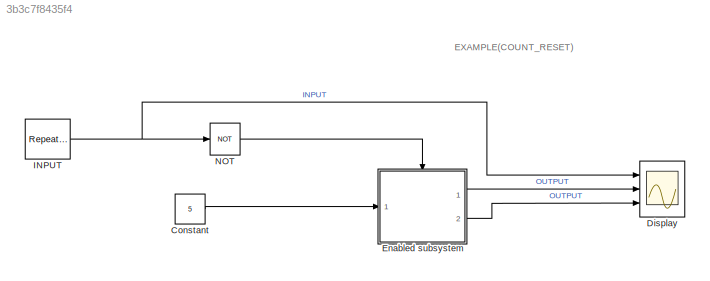
MODEL slx_3b3c7f8435f4
KIND model
CONFIG AbsTol = auto
CONFIG EnableMultiTasking = off
CONFIG FixedStep = auto
CONFIG MaxStep = auto
CONFIG MinStep = auto
CONFIG RelTol = 1e-3
CONFIG SampleTimeConstraint = Unconstrained
CONFIG SolverName = VariableStepAuto
CONFIG StartTime = 0.0
CONFIG StopTime = 20.0
BLOCK [Constant] Constant
  Value = 5
BLOCK [Scope] Display
  Floating = off
  NumInputPorts = 3
  Ports = [3]
  ScopeSpecificationString = Simulink.scopes.TimeScopeBlockCfg('CurrentConfiguration', extmgr.ConfigurationSet(extmgr.Configuration('Core','General UI',true),extmgr.Configuration('Core','Source UI',true),extmgr.Configuration('Sources','WiredSimulink',true),extmgr.Configuration('Visuals','Time Domain',true,'SerializedDisplays',{struct('MinYLimReal','-0.125','MaxYLimReal','1.125','YLabelReal','','MinYLimMag','0.00000','MaxYLimM...<+2611ch>
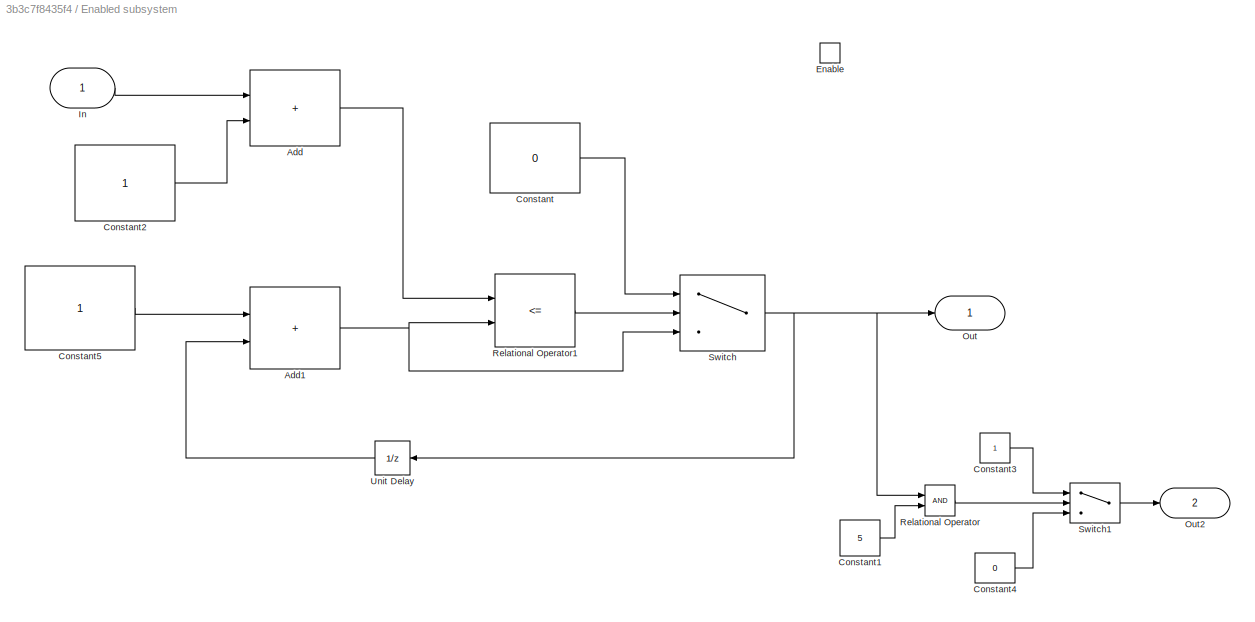
BLOCK [SubSystem] Enabled subsystem
  Ports = [1, 2, 1]
  RequestExecContextInheritance = off
BLOCK [Sum] Enabled subsystem/Add
  IconShape = rectangular
  Ports = [2, 1]
BLOCK [Sum] Enabled subsystem/Add1
  IconShape = rectangular
  Ports = [2, 1]
BLOCK [Constant] Enabled subsystem/Constant
  Value = 0
BLOCK [Constant] Enabled subsystem/Constant1
  Value = 5
BLOCK [Constant] Enabled subsystem/Constant2
BLOCK [Constant] Enabled subsystem/Constant3
BLOCK [Constant] Enabled subsystem/Constant4
  Value = 0
BLOCK [Constant] Enabled subsystem/Constant5
BLOCK [EnablePort] Enabled subsystem/Enable
  Ports = []
BLOCK [Inport] Enabled subsystem/In
BLOCK [Outport] Enabled subsystem/Out
BLOCK [Outport] Enabled subsystem/Out2
  Port = 2
BLOCK [RelationalOperator] Enabled subsystem/Relational Operator
  InputSameDT = off
  OutDataTypeStr = boolean
  Ports = [2, 1]
  RndMeth = Simplest
BLOCK [RelationalOperator] Enabled subsystem/Relational Operator1
  InputSameDT = off
  Operator = <=
  OutDataTypeStr = boolean
  Ports = [2, 1]
  RndMeth = Simplest
BLOCK [Switch] Enabled subsystem/Switch
  Criteria = u2 > Threshold
  InputSameDT = off
  SaturateOnIntegerOverflow = off
BLOCK [Switch] Enabled subsystem/Switch1
  Criteria = u2 > Threshold
  InputSameDT = off
  SaturateOnIntegerOverflow = off
BLOCK [UnitDelay] Enabled subsystem/Unit Delay
  HasFrameUpgradeWarning = on
  NameLocation = top
  SampleTime = -1
BLOCK [Reference] INPUT  REF=simulink/Sources/Repeating
Sequence
Stair
  Ports = [0, 1]
  SourceBlock = simulink/Sources/Repeating\nSequence\nStair
  SourceProductBaseCode = SL
  SourceType = Repeating Sequence Stair
BLOCK [Logic] NOT
  AllPortsSameDT = off
  IconShape = distinctive
  Operator = NOT
  OutDataTypeStr = boolean
  Ports = [1, 1]
ANNOTATION (root): EXAMPLE(COUNT_RESET)
LINE Constant:1 -> Enabled subsystem:1
NET Enabled subsystem/Add1:1 -> Enabled subsystem/Relational Operator1:2, Enabled subsystem/Switch:3
LINE Enabled subsystem/Add:1 -> Enabled subsystem/Relational Operator1:1
LINE Enabled subsystem/Constant1:1 -> Enabled subsystem/Relational Operator:2
LINE Enabled subsystem/Constant2:1 -> Enabled subsystem/Add:2
LINE Enabled subsystem/Constant3:1 -> Enabled subsystem/Switch1:1
LINE Enabled subsystem/Constant4:1 -> Enabled subsystem/Switch1:3
LINE Enabled subsystem/Constant5:1 -> Enabled subsystem/Add1:1
LINE Enabled subsystem/Constant:1 -> Enabled subsystem/Switch:1
LINE Enabled subsystem/In:1 -> Enabled subsystem/Add:1
LINE Enabled subsystem/Relational Operator1:1 -> Enabled subsystem/Switch:2
LINE Enabled subsystem/Relational Operator:1 -> Enabled subsystem/Switch1:2
LINE Enabled subsystem/Switch1:1 -> Enabled subsystem/Out2:1
NET Enabled subsystem/Switch:1 -> Enabled subsystem/Out:1, Enabled subsystem/Relational Operator:1, Enabled subsystem/Unit Delay:1
LINE Enabled subsystem/Unit Delay:1 -> Enabled subsystem/Add1:2
LINE Enabled subsystem:1 -> Display:2
LINE Enabled subsystem:2 -> Display:3
NET INPUT:1 -> Display:1, NOT:1
LINE NOT:1 -> Enabled subsystem:enable
note: NET lines group one-source signal fan-out (src -> all destinations, sorted); 1:1 wires keep LINE
